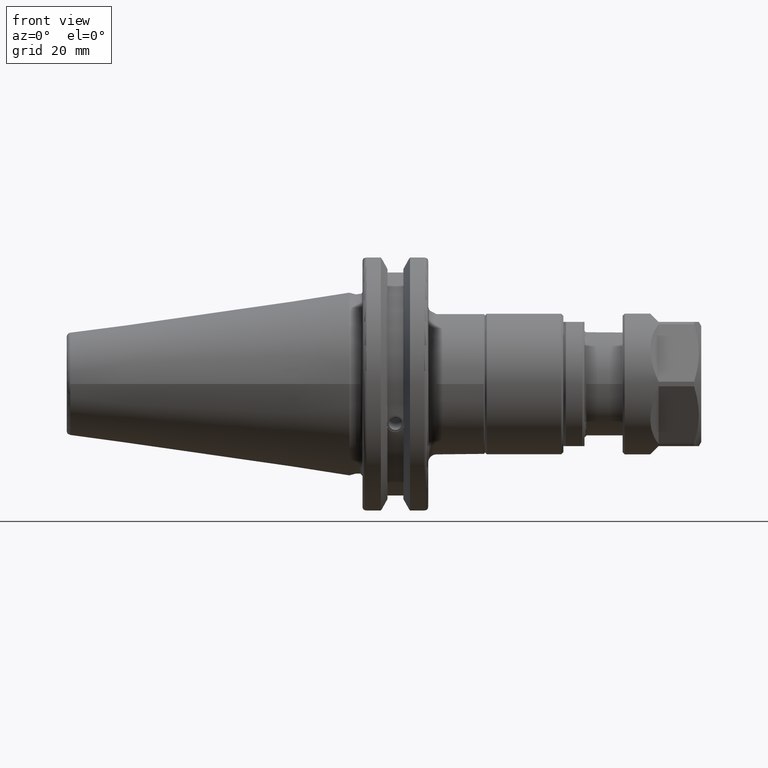
[diagram: clean part render]
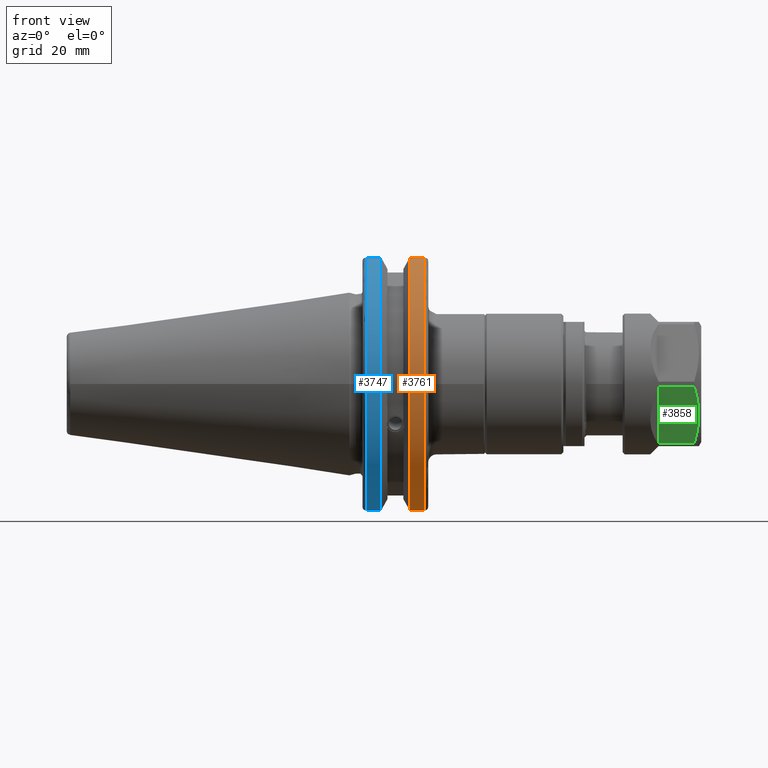
[diagram: same view with three faces highlighted in distinct colors, each labeled with its STEP entity id]
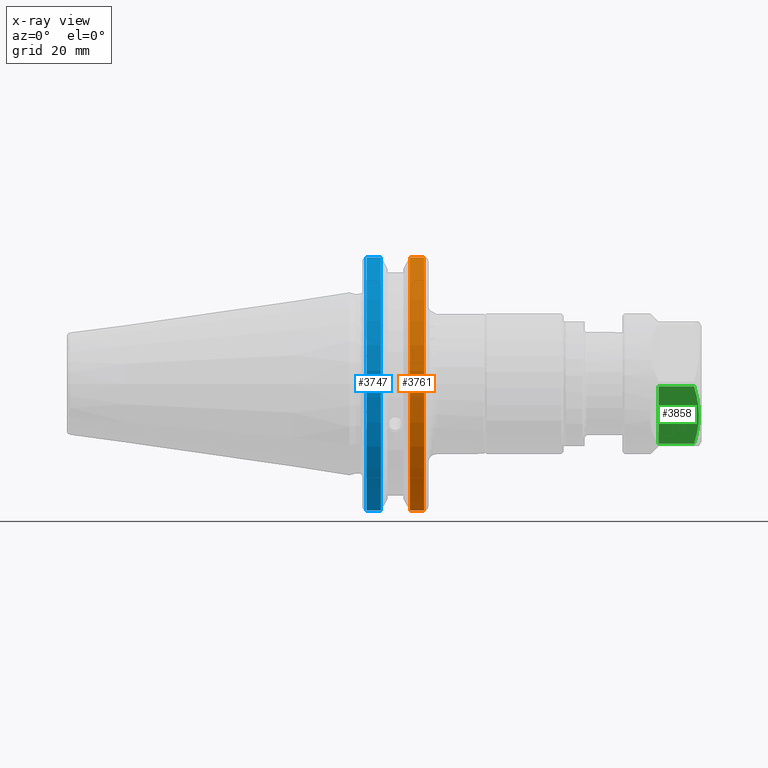
[diagram: x-ray of the same camera — body ghosted, the three highlighted faces saturated]
A machine part, front view with three faces highlighted in distinct colors.
The next image is the same camera in x-ray (body ghosted, the three faces saturated) — at least one of them is partly hidden behind the body in this view.
Their STEP definitions:

[orange] entity #3761 — the highlighted cylindrical surface (partial cylindrical patch) has radius 31.75 mm, axis along (1, 0, 0).
#322=CYLINDRICAL_SURFACE('',#4229,31.75);
#443=FACE_OUTER_BOUND('',#675,.T.);
#675=EDGE_LOOP('',(#3003,#3004,#3005,#3006));
#921=LINE('',#6681,#1109);
#922=LINE('',#6683,#1110);
#1109=VECTOR('',#5096,10.);
#1110=VECTOR('',#5099,10.);
#1272=CIRCLE('',#4128,31.75);
#1307=CIRCLE('',#4197,31.75);
#1599=VERTEX_POINT('',#6207);
#1600=VERTEX_POINT('',#6211);
#1675=VERTEX_POINT('',#6518);
#1676=VERTEX_POINT('',#6527);
#2038=EDGE_CURVE('',#1600,#1599,#1272,.T.);
#2139=EDGE_CURVE('',#1675,#1676,#1307,.T.);
#2187=EDGE_CURVE('',#1676,#1599,#921,.T.);
#2188=EDGE_CURVE('',#1600,#1675,#922,.T.);
#3003=ORIENTED_EDGE('',*,*,#2139,.F.);
#3004=ORIENTED_EDGE('',*,*,#2188,.F.);
#3005=ORIENTED_EDGE('',*,*,#2038,.T.);
#3006=ORIENTED_EDGE('',*,*,#2187,.F.);
#3761=ADVANCED_FACE('',(#443),#322,.T.);
#4128=AXIS2_PLACEMENT_3D('',#6212,#4837,#4838);
#4197=AXIS2_PLACEMENT_3D('',#6528,#5012,#5013);
#4229=AXIS2_PLACEMENT_3D('',#6682,#5097,#5098);
#4837=DIRECTION('center_axis',(1.,0.,0.));
#4838=DIRECTION('ref_axis',(0.,0.,-1.));
#5012=DIRECTION('center_axis',(1.,0.,0.));
#5013=DIRECTION('ref_axis',(0.,-1.,1.60812264967664E-16));
#5096=DIRECTION('',(-1.,0.,0.));
#5097=DIRECTION('center_axis',(1.,0.,0.));
#5098=DIRECTION('ref_axis',(0.,-1.,1.22464679914735E-16));
#5099=DIRECTION('',(1.,0.,0.));
#6207=CARTESIAN_POINT('',(14.6602667690756,-8.67204822802686,-30.5427254764662));
#6211=CARTESIAN_POINT('',(14.6602667690756,-8.67204822802685,30.5427254764662));
#6212=CARTESIAN_POINT('Origin',(14.6602667690756,0.,0.));
#6518=CARTESIAN_POINT('',(18.05,-8.67204822802685,30.5427254764662));
#6527=CARTESIAN_POINT('',(18.05,-8.67204822802686,-30.5427254764662));
#6528=CARTESIAN_POINT('Origin',(18.05,0.,0.));
#6681=CARTESIAN_POINT('',(16.8551333845378,-8.67204822802686,-30.5427254764662));
#6682=CARTESIAN_POINT('Origin',(16.8551333845378,0.,0.));
#6683=CARTESIAN_POINT('',(16.8551333845378,-8.67204822802685,30.5427254764662));

[blue] entity #3747 — the highlighted cylindrical surface (partial cylindrical patch) has radius 31.75 mm, axis along (1, 0, 0).
#321=CYLINDRICAL_SURFACE('',#4203,31.75);
#429=FACE_OUTER_BOUND('',#660,.T.);
#660=EDGE_LOOP('',(#2931,#2932,#2933,#2934));
#910=LINE('',#6595,#1098);
#911=LINE('',#6601,#1099);
#1098=VECTOR('',#5033,10.);
#1099=VECTOR('',#5036,10.);
#1308=CIRCLE('',#4201,31.75);
#1309=CIRCLE('',#4204,31.75);
#1684=VERTEX_POINT('',#6574);
#1685=VERTEX_POINT('',#6583);
#1686=VERTEX_POINT('',#6594);
#1687=VERTEX_POINT('',#6600);
#2155=EDGE_CURVE('',#1684,#1685,#1308,.T.);
#2157=EDGE_CURVE('',#1685,#1686,#910,.T.);
#2159=EDGE_CURVE('',#1687,#1684,#911,.T.);
#2160=EDGE_CURVE('',#1686,#1687,#1309,.T.);
#2931=ORIENTED_EDGE('',*,*,#2155,.F.);
#2932=ORIENTED_EDGE('',*,*,#2159,.F.);
#2933=ORIENTED_EDGE('',*,*,#2160,.F.);
#2934=ORIENTED_EDGE('',*,*,#2157,.F.);
#3747=ADVANCED_FACE('',(#429),#321,.T.);
#4201=AXIS2_PLACEMENT_3D('',#6584,#5029,#5030);
#4203=AXIS2_PLACEMENT_3D('',#6599,#5034,#5035);
#4204=AXIS2_PLACEMENT_3D('',#6602,#5037,#5038);
#5029=DIRECTION('center_axis',(-1.,0.,0.));
#5030=DIRECTION('ref_axis',(0.,-1.,1.60812264967664E-16));
#5033=DIRECTION('',(1.,0.,0.));
#5034=DIRECTION('center_axis',(1.,0.,0.));
#5035=DIRECTION('ref_axis',(0.,-1.,1.22464679914735E-16));
#5036=DIRECTION('',(-1.,0.,0.));
#5037=DIRECTION('center_axis',(1.,0.,0.));
#5038=DIRECTION('ref_axis',(0.,0.,-1.));
#6574=CARTESIAN_POINT('',(4.175,-8.67204822802685,-30.5427254764662));
#6583=CARTESIAN_POINT('',(4.175,-8.67204822802685,30.5427254764662));
#6584=CARTESIAN_POINT('Origin',(4.175,0.,0.));
#6594=CARTESIAN_POINT('',(7.60793323092436,-8.67204822802685,30.5427254764662));
#6595=CARTESIAN_POINT('',(5.39146661546218,-8.67204822802685,30.5427254764662));
#6599=CARTESIAN_POINT('Origin',(5.39146661546218,0.,0.));
#6600=CARTESIAN_POINT('',(7.60793323092436,-8.67204822802685,-30.5427254764662));
#6601=CARTESIAN_POINT('',(5.39146661546218,-8.67204822802685,-30.5427254764662));
#6602=CARTESIAN_POINT('Origin',(7.60793323092436,0.,0.));

[green] entity #3858 — the highlighted planar face has unit normal (0, 0.866, 0.5).
#81=(
BOUNDED_CURVE()
B_SPLINE_CURVE(2,(#7295,#7296,#7297),.UNSPECIFIED.,.F.,.F.)
B_SPLINE_CURVE_WITH_KNOTS((3,3),(1.89977904823277,4.47851568551626),
 .UNSPECIFIED.)
CURVE()
GEOMETRIC_REPRESENTATION_ITEM()
RATIONAL_B_SPLINE_CURVE((1.51788044142271,1.72026450027926,1.51788044142274))
REPRESENTATION_ITEM('')
);
#274=PLANE('',#4478);
#540=FACE_OUTER_BOUND('',#790,.T.);
#790=EDGE_LOOP('',(#3534,#3535,#3536,#3537));
#989=LINE('',#7262,#1177);
#990=LINE('',#7266,#1178);
#996=LINE('',#7310,#1184);
#1177=VECTOR('',#5644,8.567949192431);
#1178=VECTOR('',#5647,8.567949192431);
#1184=VECTOR('',#5671,15.9999999999995);
#1862=VERTEX_POINT('',#7259);
#1863=VERTEX_POINT('',#7261);
#1864=VERTEX_POINT('',#7263);
#1865=VERTEX_POINT('',#7265);
#2419=EDGE_CURVE('',#1863,#1862,#989,.T.);
#2421=EDGE_CURVE('',#1864,#1865,#990,.T.);
#2433=EDGE_CURVE('',#1862,#1865,#81,.T.);
#2439=EDGE_CURVE('',#1863,#1864,#996,.T.);
#3534=ORIENTED_EDGE('',*,*,#2439,.F.);
#3535=ORIENTED_EDGE('',*,*,#2419,.T.);
#3536=ORIENTED_EDGE('',*,*,#2433,.T.);
#3537=ORIENTED_EDGE('',*,*,#2421,.F.);
#3858=ADVANCED_FACE('',(#540),#274,.F.);
#4478=AXIS2_PLACEMENT_3D('',#7309,#5669,#5670);
#5644=DIRECTION('',(1.,0.,0.));
#5647=DIRECTION('',(1.,0.,0.));
#5669=DIRECTION('center_axis',(0.,-0.866025403784429,-0.500000000000017));
#5670=DIRECTION('ref_axis',(0.,0.500000000000017,-0.866025403784429));
#5671=DIRECTION('',(0.,0.500000000000017,-0.866025403784429));
#7259=CARTESIAN_POINT('',(7.767949192431,8.990381056767,14.42820323028));
#7261=CARTESIAN_POINT('',(-0.8,8.990381056767,14.42820323028));
#7262=CARTESIAN_POINT('',(-0.8,8.990381056767,14.42820323028));
#7263=CARTESIAN_POINT('',(-0.8,16.99038105677,0.5717967697245));
#7265=CARTESIAN_POINT('',(7.767949192431,16.99038105677,0.5717967697245));
#7266=CARTESIAN_POINT('',(-0.8,16.99038105677,0.5717967697245));
#7295=CARTESIAN_POINT('Ctrl Pts',(7.76794919242971,8.99038105676321,14.4282032302778));
#7296=CARTESIAN_POINT('Ctrl Pts',(9.94150314702762,12.9903810567648,7.49999999999987));
#7297=CARTESIAN_POINT('Ctrl Pts',(7.76794919243006,16.9903810567662,0.571796769722221));
#7309=CARTESIAN_POINT('Origin',(9.5,7.990381056767,16.16025403784));
#7310=CARTESIAN_POINT('',(-0.8,8.990381056767,14.42820323028));